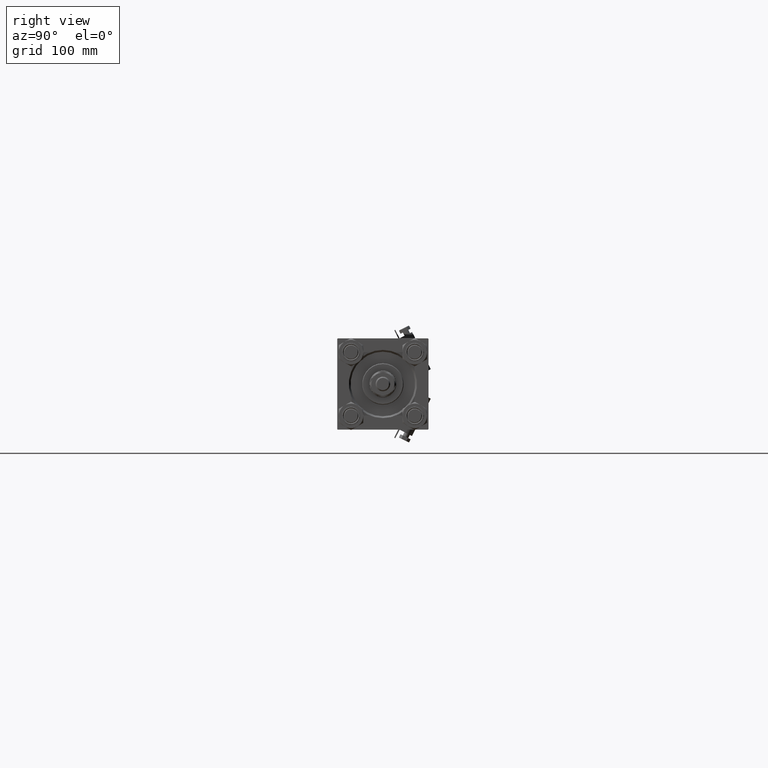
[diagram: clean part render]
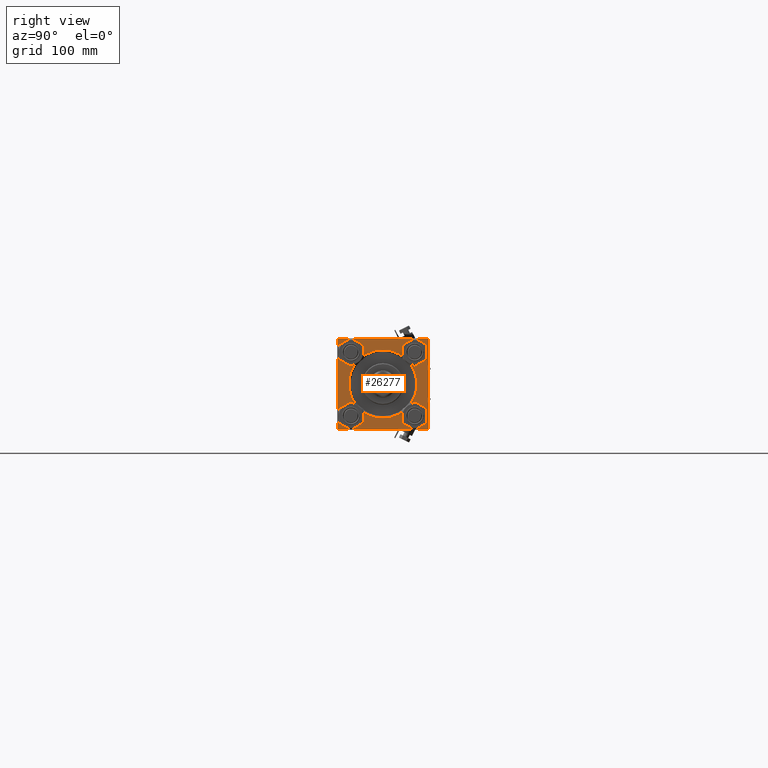
[diagram: same view with one face highlighted and labeled with its STEP entity id]
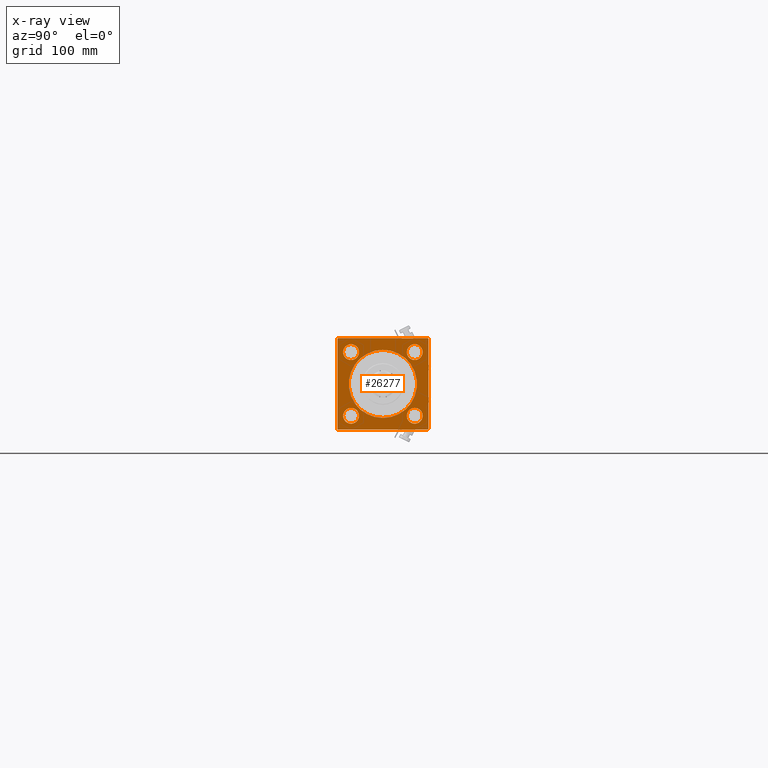
[diagram: x-ray of the same camera — body ghosted, the highlighted face saturated]
A machine part, right view. The second image highlights one B-rep face of the part: STEP entity #26277.
The next image is the same camera in x-ray: the body ghosted, the highlighted face saturated — about 0% of this face is hidden behind the body in this view.
In plain terms, the highlighted planar face has unit normal (-1, 0, 0).
Its self-contained STEP definition (entity closure, byte-faithful):
#146 = DIRECTION ( 'NONE',  ( -1.000000000000000000, -0.000000000000000000, 0.000000000000000000 ) ) ;
#214 = DIRECTION ( 'NONE',  ( -1.000000000000000000, -0.000000000000000000, 0.000000000000000000 ) ) ;
#413 = CARTESIAN_POINT ( 'NONE',  ( 484.0000000000000000, 37.50000000000000000, -36.99999999999993605 ) ) ;
#812 = VERTEX_POINT ( 'NONE', #32576 ) ;
#969 = CARTESIAN_POINT ( 'NONE',  ( 484.0000000000000000, 37.50000000000000000, 37.49999999999999289 ) ) ;
#1549 = DIRECTION ( 'NONE',  ( -1.000000000000000000, -0.000000000000000000, 0.000000000000000000 ) ) ;
#3353 = CARTESIAN_POINT ( 'NONE',  ( 484.0000000000000000, 26.14999999999999858, 19.64999999999999858 ) ) ;
#4079 = EDGE_CURVE ( 'NONE', #4339, #36424, #12498, .T. ) ;
#4084 = ORIENTED_EDGE ( 'NONE', *, *, #45042, .T. ) ;
#4339 = VERTEX_POINT ( 'NONE', #48027 ) ;
#4445 = DIRECTION ( 'NONE',  ( -0.000000000000000000, -0.7071067811865081598, -0.7071067811865867636 ) ) ;
#4704 = VERTEX_POINT ( 'NONE', #46066 ) ;
#5022 = ORIENTED_EDGE ( 'NONE', *, *, #17957, .T. ) ;
#5851 = DIRECTION ( 'NONE',  ( 0.000000000000000000, 0.000000000000000000, 1.000000000000000000 ) ) ;
#5958 = VERTEX_POINT ( 'NONE', #3353 ) ;
#6164 = EDGE_CURVE ( 'NONE', #15936, #41505, #45155, .T. ) ;
#6425 = CARTESIAN_POINT ( 'NONE',  ( 484.0000000000000000, 36.99999999999994316, 37.49999999999999289 ) ) ;
#6522 = EDGE_LOOP ( 'NONE', ( #35312, #48145 ) ) ;
#6927 = CIRCLE ( 'NONE', #14581, 6.500000000000002665 ) ;
#7322 = CARTESIAN_POINT ( 'NONE',  ( 484.0000000000000000, -37.50000000000000000, 36.99999999999992184 ) ) ;
#8128 = EDGE_LOOP ( 'NONE', ( #5022, #46210 ) ) ;
#8150 = EDGE_CURVE ( 'NONE', #25084, #34403, #34760, .T. ) ;
#8408 = DIRECTION ( 'NONE',  ( 0.000000000000000000, 0.000000000000000000, 1.000000000000000000 ) ) ;
#8556 = EDGE_CURVE ( 'NONE', #34403, #812, #19785, .T. ) ;
#8885 = CARTESIAN_POINT ( 'NONE',  ( 484.0000000000000000, -36.99999999999995737, -37.50000000000000000 ) ) ;
#9138 = DIRECTION ( 'NONE',  ( -1.000000000000000000, -0.000000000000000000, 0.000000000000000000 ) ) ;
#9143 = AXIS2_PLACEMENT_3D ( 'NONE', #16230, #36849, #12515 ) ;
#10113 = LINE ( 'NONE', #26252, #35546 ) ;
#10764 = CARTESIAN_POINT ( 'NONE',  ( 484.0000000000000000, 26.14999999999999858, -19.65000000000000213 ) ) ;
#11567 = EDGE_LOOP ( 'NONE', ( #46414, #39031 ) ) ;
#11731 = PLANE ( 'NONE',  #9143 ) ;
#11803 = CARTESIAN_POINT ( 'NONE',  ( 484.0000000000000000, -37.50000000000000711, -37.00000000000000711 ) ) ;
#11931 = AXIS2_PLACEMENT_3D ( 'NONE', #50157, #30010, #26825 ) ;
#12245 = CARTESIAN_POINT ( 'NONE',  ( 484.0000000000000000, 26.14999999999999858, 32.65000000000001279 ) ) ;
#12498 = CIRCLE ( 'NONE', #32774, 28.00000000000002487 ) ;
#12515 = DIRECTION ( 'NONE',  ( 0.000000000000000000, 0.000000000000000000, 1.000000000000000000 ) ) ;
#12690 = EDGE_LOOP ( 'NONE', ( #23500, #22218 ) ) ;
#13870 = DIRECTION ( 'NONE',  ( 0.000000000000000000, -0.7071067811865867636, 0.7071067811865081598 ) ) ;
#13886 = CARTESIAN_POINT ( 'NONE',  ( 484.0000000000000000, 37.50000000000000000, -37.50000000000000000 ) ) ;
#14581 = AXIS2_PLACEMENT_3D ( 'NONE', #37289, #1549, #29334 ) ;
#14754 = DIRECTION ( 'NONE',  ( 0.000000000000000000, 0.000000000000000000, 1.000000000000000000 ) ) ;
#15145 = ORIENTED_EDGE ( 'NONE', *, *, #52247, .F. ) ;
#15713 = EDGE_CURVE ( 'NONE', #812, #47524, #20583, .T. ) ;
#15798 = ORIENTED_EDGE ( 'NONE', *, *, #8556, .T. ) ;
#15936 = VERTEX_POINT ( 'NONE', #11803 ) ;
#15972 = FACE_OUTER_BOUND ( 'NONE', #32559, .T. ) ;
#16230 = CARTESIAN_POINT ( 'NONE',  ( 484.0000000000000000, 0.000000000000000000, 0.000000000000000000 ) ) ;
#16398 = AXIS2_PLACEMENT_3D ( 'NONE', #21576, #9138, #37457 ) ;
#17901 = AXIS2_PLACEMENT_3D ( 'NONE', #22627, #31819, #35793 ) ;
#17957 = EDGE_CURVE ( 'NONE', #41097, #27119, #40698, .T. ) ;
#18551 = EDGE_CURVE ( 'NONE', #48327, #4704, #6927, .T. ) ;
#19235 = CIRCLE ( 'NONE', #35288, 6.500000000000002665 ) ;
#19492 = DIRECTION ( 'NONE',  ( -1.000000000000000000, -0.000000000000000000, 0.000000000000000000 ) ) ;
#19785 = LINE ( 'NONE', #969, #22759 ) ;
#19860 = CARTESIAN_POINT ( 'NONE',  ( 484.0000000000000000, 36.99999999999994316, 37.49999999999999289 ) ) ;
#20427 = CIRCLE ( 'NONE', #25496, 6.500000000000002665 ) ;
#20583 = LINE ( 'NONE', #33022, #24550 ) ;
#20703 = FACE_BOUND ( 'NONE', #11567, .T. ) ;
#21171 = VERTEX_POINT ( 'NONE', #23085 ) ;
#21476 = CARTESIAN_POINT ( 'NONE',  ( 484.0000000000000000, 0.000000000000000000, 0.000000000000000000 ) ) ;
#21576 = CARTESIAN_POINT ( 'NONE',  ( 484.0000000000000000, 26.14999999999999858, 26.15000000000000213 ) ) ;
#21974 = CARTESIAN_POINT ( 'NONE',  ( 484.0000000000000000, 37.50000000000000000, 36.99999999999999289 ) ) ;
#22218 = ORIENTED_EDGE ( 'NONE', *, *, #40030, .T. ) ;
#22534 = DIRECTION ( 'NONE',  ( 0.000000000000000000, 0.000000000000000000, -1.000000000000000000 ) ) ;
#22627 = CARTESIAN_POINT ( 'NONE',  ( 484.0000000000000000, 26.14999999999999858, -26.15000000000000213 ) ) ;
#22759 = VECTOR ( 'NONE', #49428, 1000.000000000000000 ) ;
#23085 = CARTESIAN_POINT ( 'NONE',  ( 484.0000000000000000, -26.14999999999999147, -19.65000000000000924 ) ) ;
#23500 = ORIENTED_EDGE ( 'NONE', *, *, #46560, .T. ) ;
#23507 = ORIENTED_EDGE ( 'NONE', *, *, #8150, .T. ) ;
#23962 = VECTOR ( 'NONE', #28544, 1000.000000000000000 ) ;
#24198 = EDGE_CURVE ( 'NONE', #21171, #45321, #19235, .T. ) ;
#24550 = VECTOR ( 'NONE', #4445, 1000.000000000000000 ) ;
#24746 = DIRECTION ( 'NONE',  ( -1.000000000000000000, -0.000000000000000000, 0.000000000000000000 ) ) ;
#24828 = CIRCLE ( 'NONE', #16398, 6.500000000000002665 ) ;
#25067 = CARTESIAN_POINT ( 'NONE',  ( 484.0000000000000000, -26.14999999999999147, -26.15000000000000924 ) ) ;
#25084 = VERTEX_POINT ( 'NONE', #21974 ) ;
#25496 = AXIS2_PLACEMENT_3D ( 'NONE', #25067, #214, #8408 ) ;
#26252 = CARTESIAN_POINT ( 'NONE',  ( 484.0000000000000000, 37.50000000000000000, 37.49999999999999289 ) ) ;
#26277 = ADVANCED_FACE ( 'NONE', ( #20703, #32617, #27865, #48787, #33144, #15972 ), #11731, .F. ) ;
#26409 = ORIENTED_EDGE ( 'NONE', *, *, #6164, .T. ) ;
#26491 = DIRECTION ( 'NONE',  ( 0.000000000000000000, -9.251858538542972814E-17, -1.000000000000000000 ) ) ;
#26660 = EDGE_CURVE ( 'NONE', #27119, #41097, #44549, .T. ) ;
#26825 = DIRECTION ( 'NONE',  ( 0.000000000000000000, 0.000000000000000000, 1.000000000000000000 ) ) ;
#27119 = VERTEX_POINT ( 'NONE', #10764 ) ;
#27788 = VECTOR ( 'NONE', #13870, 1000.000000000000000 ) ;
#27865 = FACE_BOUND ( 'NONE', #12690, .T. ) ;
#28010 = CARTESIAN_POINT ( 'NONE',  ( 484.0000000000000000, 3.429011037612592037E-15, 28.00000000000002487 ) ) ;
#28544 = DIRECTION ( 'NONE',  ( -0.000000000000000000, 0.7071067811865033859, 0.7071067811865916486 ) ) ;
#28986 = DIRECTION ( 'NONE',  ( 0.000000000000000000, 0.000000000000000000, 1.000000000000000000 ) ) ;
#29326 = LINE ( 'NONE', #36759, #23962 ) ;
#29334 = DIRECTION ( 'NONE',  ( 0.000000000000000000, 0.000000000000000000, 1.000000000000000000 ) ) ;
#29447 = VECTOR ( 'NONE', #37207, 1000.000000000000000 ) ;
#30010 = DIRECTION ( 'NONE',  ( -1.000000000000000000, -0.000000000000000000, 0.000000000000000000 ) ) ;
#30013 = VECTOR ( 'NONE', #45378, 1000.000000000000000 ) ;
#30422 = CARTESIAN_POINT ( 'NONE',  ( 484.0000000000000000, -36.99999999999995737, -37.50000000000000000 ) ) ;
#31030 = EDGE_LOOP ( 'NONE', ( #39976, #42956 ) ) ;
#31819 = DIRECTION ( 'NONE',  ( -1.000000000000000000, -0.000000000000000000, 0.000000000000000000 ) ) ;
#32275 = CARTESIAN_POINT ( 'NONE',  ( 484.0000000000000000, -26.14999999999999147, 32.65000000000001990 ) ) ;
#32302 = DIRECTION ( 'NONE',  ( -1.000000000000000000, -0.000000000000000000, 0.000000000000000000 ) ) ;
#32559 = EDGE_LOOP ( 'NONE', ( #4084, #26409, #15145, #43248, #44983, #23507, #15798, #33543 ) ) ;
#32576 = CARTESIAN_POINT ( 'NONE',  ( 484.0000000000000000, -37.00000000000000000, 37.49999999999997868 ) ) ;
#32617 = FACE_BOUND ( 'NONE', #8128, .T. ) ;
#32774 = AXIS2_PLACEMENT_3D ( 'NONE', #36409, #146, #35891 ) ;
#33022 = CARTESIAN_POINT ( 'NONE',  ( 484.0000000000000000, -37.50000000000000000, 36.99999999999992184 ) ) ;
#33144 = FACE_BOUND ( 'NONE', #31030, .T. ) ;
#33314 = CIRCLE ( 'NONE', #42619, 6.500000000000002665 ) ;
#33488 = CARTESIAN_POINT ( 'NONE',  ( 484.0000000000000000, -26.14999999999999147, 26.15000000000000924 ) ) ;
#33543 = ORIENTED_EDGE ( 'NONE', *, *, #15713, .T. ) ;
#34072 = VERTEX_POINT ( 'NONE', #12245 ) ;
#34403 = VERTEX_POINT ( 'NONE', #19860 ) ;
#34760 = LINE ( 'NONE', #6425, #27788 ) ;
#34834 = CIRCLE ( 'NONE', #11931, 6.500000000000002665 ) ;
#35086 = EDGE_CURVE ( 'NONE', #25084, #46582, #10113, .T. ) ;
#35288 = AXIS2_PLACEMENT_3D ( 'NONE', #51035, #19492, #14754 ) ;
#35312 = ORIENTED_EDGE ( 'NONE', *, *, #46602, .T. ) ;
#35472 = LINE ( 'NONE', #51648, #37467 ) ;
#35546 = VECTOR ( 'NONE', #22534, 1000.000000000000000 ) ;
#35753 = CARTESIAN_POINT ( 'NONE',  ( 484.0000000000000000, 26.14999999999999858, -26.15000000000000213 ) ) ;
#35793 = DIRECTION ( 'NONE',  ( 0.000000000000000000, 0.000000000000000000, 1.000000000000000000 ) ) ;
#35846 = CIRCLE ( 'NONE', #47690, 28.00000000000002487 ) ;
#35891 = DIRECTION ( 'NONE',  ( 0.000000000000000000, 0.000000000000000000, 1.000000000000000000 ) ) ;
#36409 = CARTESIAN_POINT ( 'NONE',  ( 484.0000000000000000, 0.000000000000000000, 0.000000000000000000 ) ) ;
#36424 = VERTEX_POINT ( 'NONE', #28010 ) ;
#36759 = CARTESIAN_POINT ( 'NONE',  ( 484.0000000000000000, 37.50000000000000000, -36.99999999999993605 ) ) ;
#36849 = DIRECTION ( 'NONE',  ( -1.000000000000000000, -0.000000000000000000, 0.000000000000000000 ) ) ;
#37170 = CARTESIAN_POINT ( 'NONE',  ( 484.0000000000000000, 37.00000000000000000, -37.50000000000000000 ) ) ;
#37207 = DIRECTION ( 'NONE',  ( 0.000000000000000000, 0.7071067811865867636, -0.7071067811865081598 ) ) ;
#37289 = CARTESIAN_POINT ( 'NONE',  ( 484.0000000000000000, -26.14999999999999147, 26.15000000000000924 ) ) ;
#37457 = DIRECTION ( 'NONE',  ( 0.000000000000000000, 0.000000000000000000, 1.000000000000000000 ) ) ;
#37467 = VECTOR ( 'NONE', #26491, 1000.000000000000000 ) ;
#39031 = ORIENTED_EDGE ( 'NONE', *, *, #24198, .T. ) ;
#39115 = CARTESIAN_POINT ( 'NONE',  ( 484.0000000000000000, -26.14999999999999147, -32.65000000000001279 ) ) ;
#39976 = ORIENTED_EDGE ( 'NONE', *, *, #4079, .T. ) ;
#40030 = EDGE_CURVE ( 'NONE', #34072, #5958, #34834, .T. ) ;
#40489 = DIRECTION ( 'NONE',  ( 0.000000000000000000, 0.000000000000000000, 1.000000000000000000 ) ) ;
#40698 = CIRCLE ( 'NONE', #17901, 6.500000000000002665 ) ;
#41097 = VERTEX_POINT ( 'NONE', #43250 ) ;
#41505 = VERTEX_POINT ( 'NONE', #30422 ) ;
#41808 = EDGE_CURVE ( 'NONE', #45321, #21171, #20427, .T. ) ;
#42619 = AXIS2_PLACEMENT_3D ( 'NONE', #33488, #24746, #28986 ) ;
#42901 = DIRECTION ( 'NONE',  ( -1.000000000000000000, -0.000000000000000000, 0.000000000000000000 ) ) ;
#42956 = ORIENTED_EDGE ( 'NONE', *, *, #49272, .T. ) ;
#43248 = ORIENTED_EDGE ( 'NONE', *, *, #48312, .T. ) ;
#43250 = CARTESIAN_POINT ( 'NONE',  ( 484.0000000000000000, 26.14999999999999858, -32.65000000000000568 ) ) ;
#44549 = CIRCLE ( 'NONE', #46386, 6.500000000000002665 ) ;
#44983 = ORIENTED_EDGE ( 'NONE', *, *, #35086, .F. ) ;
#45042 = EDGE_CURVE ( 'NONE', #47524, #15936, #35472, .T. ) ;
#45155 = LINE ( 'NONE', #8885, #29447 ) ;
#45321 = VERTEX_POINT ( 'NONE', #39115 ) ;
#45378 = DIRECTION ( 'NONE',  ( 0.000000000000000000, -1.000000000000000000, 0.000000000000000000 ) ) ;
#45649 = LINE ( 'NONE', #13886, #30013 ) ;
#46066 = CARTESIAN_POINT ( 'NONE',  ( 484.0000000000000000, -26.14999999999999147, 19.65000000000000568 ) ) ;
#46210 = ORIENTED_EDGE ( 'NONE', *, *, #26660, .T. ) ;
#46386 = AXIS2_PLACEMENT_3D ( 'NONE', #35753, #32302, #40489 ) ;
#46414 = ORIENTED_EDGE ( 'NONE', *, *, #41808, .T. ) ;
#46560 = EDGE_CURVE ( 'NONE', #5958, #34072, #24828, .T. ) ;
#46582 = VERTEX_POINT ( 'NONE', #413 ) ;
#46602 = EDGE_CURVE ( 'NONE', #4704, #48327, #33314, .T. ) ;
#47524 = VERTEX_POINT ( 'NONE', #7322 ) ;
#47690 = AXIS2_PLACEMENT_3D ( 'NONE', #21476, #42901, #5851 ) ;
#48027 = CARTESIAN_POINT ( 'NONE',  ( 484.0000000000000000, 0.000000000000000000, -28.00000000000002487 ) ) ;
#48145 = ORIENTED_EDGE ( 'NONE', *, *, #18551, .T. ) ;
#48312 = EDGE_CURVE ( 'NONE', #50699, #46582, #29326, .T. ) ;
#48327 = VERTEX_POINT ( 'NONE', #32275 ) ;
#48787 = FACE_BOUND ( 'NONE', #6522, .T. ) ;
#49272 = EDGE_CURVE ( 'NONE', #36424, #4339, #35846, .T. ) ;
#49428 = DIRECTION ( 'NONE',  ( 0.000000000000000000, -1.000000000000000000, -1.850371707708594316E-16 ) ) ;
#50157 = CARTESIAN_POINT ( 'NONE',  ( 484.0000000000000000, 26.14999999999999858, 26.15000000000000213 ) ) ;
#50699 = VERTEX_POINT ( 'NONE', #37170 ) ;
#51035 = CARTESIAN_POINT ( 'NONE',  ( 484.0000000000000000, -26.14999999999999147, -26.15000000000000924 ) ) ;
#51648 = CARTESIAN_POINT ( 'NONE',  ( 484.0000000000000000, -37.50000000000000000, 37.49999999999997868 ) ) ;
#52247 = EDGE_CURVE ( 'NONE', #50699, #41505, #45649, .T. ) ;